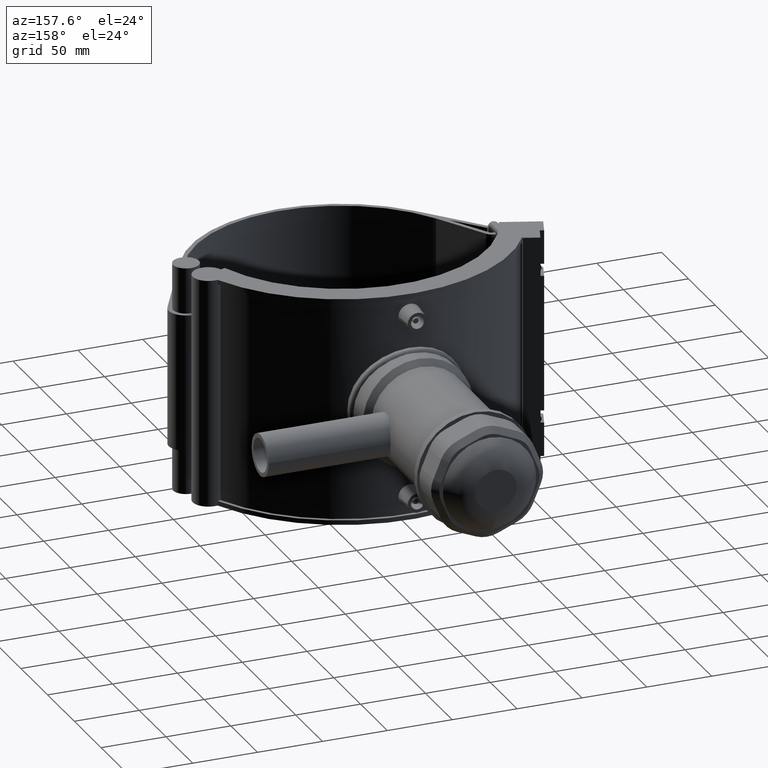
[diagram: clean part render]
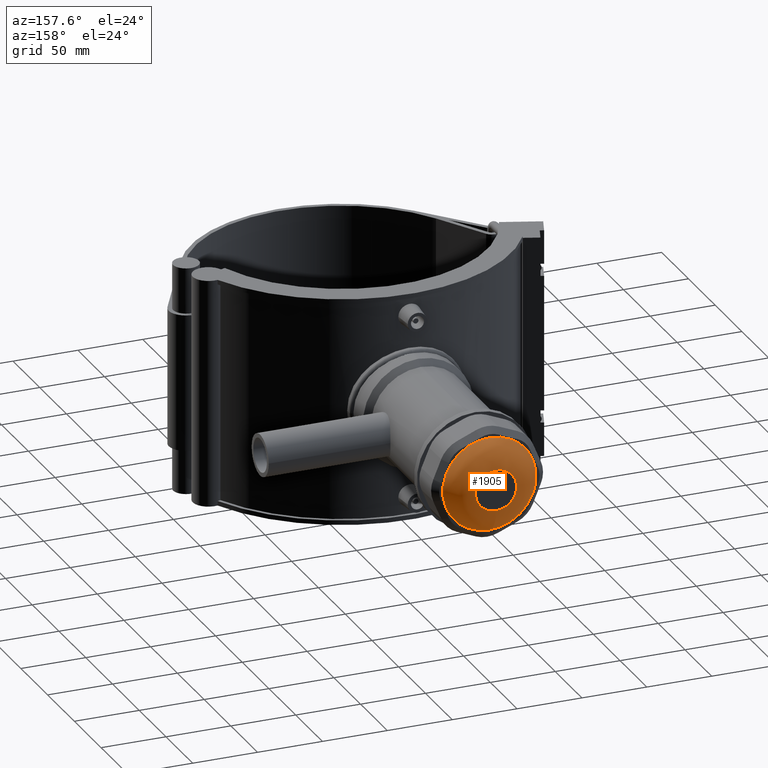
[diagram: same view with one face highlighted and labeled with its STEP entity id]
A machine part, auxiliary view. The second image highlights one B-rep face of the part: STEP entity #1905.
In plain terms, the highlighted face is a freeform B-spline surface patch.
Its self-contained STEP definition (entity closure, byte-faithful):
#26=(
BOUNDED_CURVE()
B_SPLINE_CURVE(2,(#3223,#3224,#3225),.UNSPECIFIED.,.F.,.F.)
B_SPLINE_CURVE_WITH_KNOTS((3,3),(-1.5707963267949,-0.466018955989195),
 .UNSPECIFIED.)
CURVE()
GEOMETRIC_REPRESENTATION_ITEM()
RATIONAL_B_SPLINE_CURVE((1.,0.851273555719121,1.))
REPRESENTATION_ITEM('')
);
#27=(
BOUNDED_SURFACE()
B_SPLINE_SURFACE(2,2,((#3194,#3195,#3196,#3197,#3198,#3199,#3200,#3201,
#3202),(#3203,#3204,#3205,#3206,#3207,#3208,#3209,#3210,#3211),(#3212,#3213,
#3214,#3215,#3216,#3217,#3218,#3219,#3220)),.UNSPECIFIED.,.F.,.T.,.F.)
B_SPLINE_SURFACE_WITH_KNOTS((3,3),(3,2,2,2,3),(0.466018955989195,1.5707963267949),
(-3.14159265358979,-1.5707963267949,0.,1.5707963267949,3.14159265358979),
 .UNSPECIFIED.)
GEOMETRIC_REPRESENTATION_ITEM()
RATIONAL_B_SPLINE_SURFACE(((1.,0.707106781186548,1.,0.707106781186548,1.,
0.707106781186548,1.,0.707106781186548,1.),(0.851273555719121,0.601941303893775,
0.851273555719121,0.601941303893775,0.851273555719121,0.601941303893775,
0.851273555719121,0.601941303893775,0.851273555719121),(1.,0.707106781186548,
1.,0.707106781186548,1.,0.707106781186548,1.,0.707106781186548,1.)))
REPRESENTATION_ITEM('')
SURFACE()
);
#484=FACE_OUTER_BOUND('',#613,.T.);
#613=EDGE_LOOP('',(#1393,#1394,#1395,#1396));
#757=CIRCLE('',#2051,36.);
#759=CIRCLE('',#2054,15.8993059821309);
#868=VERTEX_POINT('',#3189);
#870=VERTEX_POINT('',#3221);
#1070=EDGE_CURVE('',#868,#868,#757,.T.);
#1072=EDGE_CURVE('',#870,#870,#759,.T.);
#1073=EDGE_CURVE('',#870,#868,#26,.T.);
#1393=ORIENTED_EDGE('',*,*,#1072,.T.);
#1394=ORIENTED_EDGE('',*,*,#1073,.T.);
#1395=ORIENTED_EDGE('',*,*,#1070,.T.);
#1396=ORIENTED_EDGE('',*,*,#1073,.F.);
#1905=ADVANCED_FACE('',(#484),#27,.T.);
#2051=AXIS2_PLACEMENT_3D('',#3190,#2365,#2366);
#2054=AXIS2_PLACEMENT_3D('',#3222,#2371,#2372);
#2365=DIRECTION('center_axis',(0.,1.,3.06161699786838E-16));
#2366=DIRECTION('ref_axis',(1.,0.,0.));
#2371=DIRECTION('center_axis',(0.,-1.,-3.06161699786838E-16));
#2372=DIRECTION('ref_axis',(-6.12323399573677E-17,-2.79313581579707E-16,
1.));
#3189=CARTESIAN_POINT('',(6.61309271539571E-15,277.11,-36.));
#3190=CARTESIAN_POINT('Origin',(0.,277.11,5.03972774019115E-14));
#3194=CARTESIAN_POINT('Ctrl Pts',(2.20436423846524E-15,277.11,-35.9999999999999));
#3195=CARTESIAN_POINT('Ctrl Pts',(36.,277.11,-35.9999999999999));
#3196=CARTESIAN_POINT('Ctrl Pts',(36.,277.11,5.26016416403767E-14));
#3197=CARTESIAN_POINT('Ctrl Pts',(36.,277.11,36.));
#3198=CARTESIAN_POINT('Ctrl Pts',(-2.20436423846524E-15,277.11,36.));
#3199=CARTESIAN_POINT('Ctrl Pts',(-36.,277.11,36.));
#3200=CARTESIAN_POINT('Ctrl Pts',(-36.,277.11,4.81929131634462E-14));
#3201=CARTESIAN_POINT('Ctrl Pts',(-36.,277.11,-35.9999999999999));
#3202=CARTESIAN_POINT('Ctrl Pts',(2.20436423846524E-15,277.11,-35.9999999999999));
#3203=CARTESIAN_POINT('Ctrl Pts',(1.82277838525901E-15,289.5,-29.7682300974959));
#3204=CARTESIAN_POINT('Ctrl Pts',(29.7682300974959,289.5,-29.7682300974959));
#3205=CARTESIAN_POINT('Ctrl Pts',(29.7682300974959,289.5,5.60133992475294E-14));
#3206=CARTESIAN_POINT('Ctrl Pts',(29.7682300974959,289.5,29.768230097496));
#3207=CARTESIAN_POINT('Ctrl Pts',(-1.82277838525901E-15,289.5,29.768230097496));
#3208=CARTESIAN_POINT('Ctrl Pts',(-29.7682300974959,289.5,29.768230097496));
#3209=CARTESIAN_POINT('Ctrl Pts',(-29.7682300974959,289.5,5.23678424770114E-14));
#3210=CARTESIAN_POINT('Ctrl Pts',(-29.7682300974959,289.5,-29.7682300974959));
#3211=CARTESIAN_POINT('Ctrl Pts',(1.82277838525901E-15,289.5,-29.7682300974959));
#3212=CARTESIAN_POINT('Ctrl Pts',(9.73551708984046E-16,289.5,-15.8993059821308));
#3213=CARTESIAN_POINT('Ctrl Pts',(15.8993059821309,289.5,-15.8993059821308));
#3214=CARTESIAN_POINT('Ctrl Pts',(15.8993059821309,289.5,5.51641725712544E-14));
#3215=CARTESIAN_POINT('Ctrl Pts',(15.8993059821309,289.5,15.8993059821309));
#3216=CARTESIAN_POINT('Ctrl Pts',(-9.73551708984046E-16,289.5,15.8993059821309));
#3217=CARTESIAN_POINT('Ctrl Pts',(-15.8993059821309,289.5,15.8993059821309));
#3218=CARTESIAN_POINT('Ctrl Pts',(-15.8993059821309,289.5,5.32170691532863E-14));
#3219=CARTESIAN_POINT('Ctrl Pts',(-15.8993059821309,289.5,-15.8993059821308));
#3220=CARTESIAN_POINT('Ctrl Pts',(9.73551708984046E-16,289.5,-15.8993059821308));
#3221=CARTESIAN_POINT('',(2.92065512695214E-15,289.5,-15.8993059821308));
#3222=CARTESIAN_POINT('Origin',(0.,289.5,5.41906208622704E-14));
#3223=CARTESIAN_POINT('Ctrl Pts',(9.73551708984046E-16,289.5,-15.8993059821308));
#3224=CARTESIAN_POINT('Ctrl Pts',(1.82277838525901E-15,289.5,-29.7682300974959));
#3225=CARTESIAN_POINT('Ctrl Pts',(2.20436423846524E-15,277.11,-35.9999999999999));